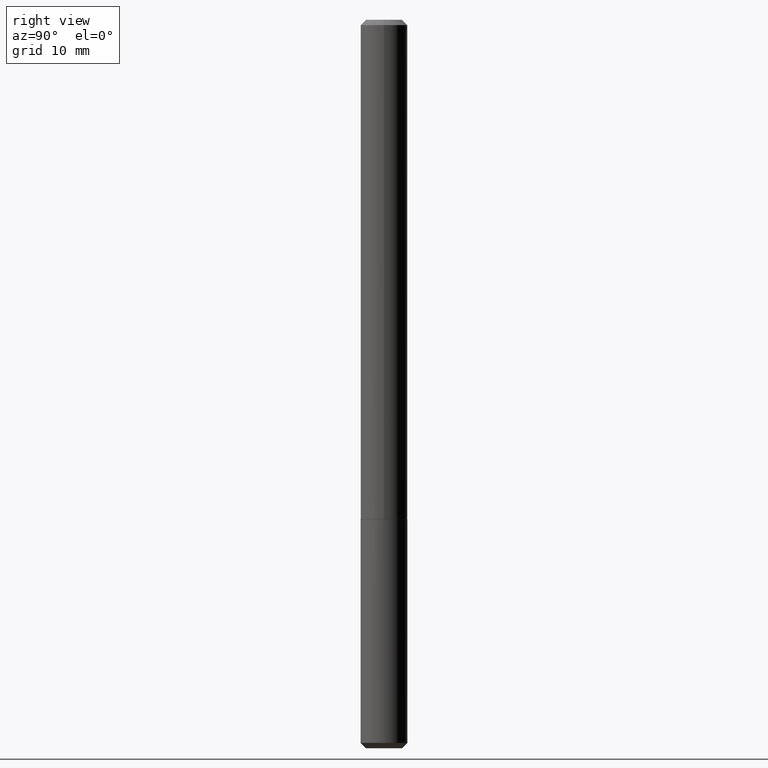
[diagram: clean part render]
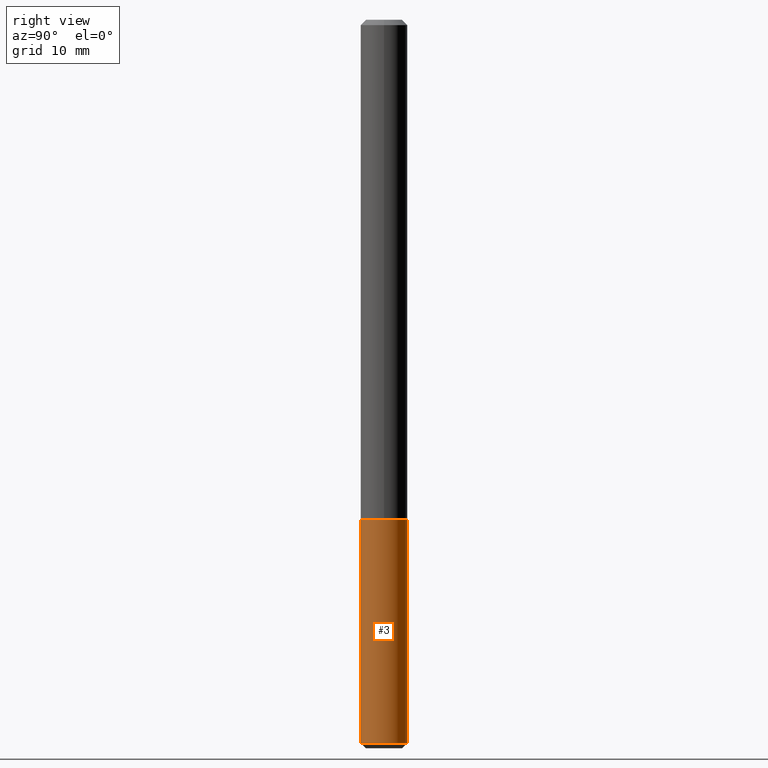
[diagram: same view with one face highlighted and labeled with its STEP entity id]
A machine part, right view. The second image highlights one B-rep face of the part: STEP entity #3.
In plain terms, the highlighted cylindrical surface (edge-blend (fillet) strip) has radius 2.2504 mm, axis along (-0, 0, 1).
Its self-contained STEP definition (entity closure, byte-faithful):
#3 = ADVANCED_FACE ( 'NONE', ( #37 ), #123, .T. ) ;
#15 = ORIENTED_EDGE ( 'NONE', *, *, #295, .T. ) ;
#20 = EDGE_CURVE ( 'NONE', #284, #95, #333, .T. ) ;
#37 = FACE_OUTER_BOUND ( 'NONE', #99, .T. ) ;
#79 = VECTOR ( 'NONE', #107, 39.37007874015748143 ) ;
#80 = CARTESIAN_POINT ( 'NONE',  ( 6.295408638835171856E-16, 0.08859999999999067233, -2.735900000000000887 ) ) ;
#82 = DIRECTION ( 'NONE',  ( -2.444857709437584392E-29, 3.492356464167107304E-15, 1.000000000000000000 ) ) ;
#84 = DIRECTION ( 'NONE',  ( -6.982962677686265133E-15, -1.000000000000000000, 3.083349879982238325E-15 ) ) ;
#91 = ORIENTED_EDGE ( 'NONE', *, *, #159, .T. ) ;
#95 = VERTEX_POINT ( 'NONE', #141 ) ;
#99 = EDGE_LOOP ( 'NONE', ( #91, #15, #287, #206 ) ) ;
#107 = DIRECTION ( 'NONE',  ( -2.444857709437584392E-29, 3.492356464167107304E-15, 1.000000000000000000 ) ) ;
#115 = CARTESIAN_POINT ( 'NONE',  ( 4.621446949928671428E-29, -6.598201434145777579E-15, -1.889800000000000146 ) ) ;
#116 = AXIS2_PLACEMENT_3D ( 'NONE', #167, #241, #370 ) ;
#121 = LINE ( 'NONE', #283, #251 ) ;
#123 = CYLINDRICAL_SURFACE ( 'NONE', #170, 0.08859999999999999820 ) ;
#139 = VERTEX_POINT ( 'NONE', #330 ) ;
#141 = CARTESIAN_POINT ( 'NONE',  ( 6.295408638835158051E-16, 0.08859999999999342013, -1.889800000000000368 ) ) ;
#159 = EDGE_CURVE ( 'NONE', #139, #171, #263, .T. ) ;
#167 = CARTESIAN_POINT ( 'NONE',  ( 6.690041057883811950E-29, -9.553084238477568899E-15, -2.735899999999999999 ) ) ;
#170 = AXIS2_PLACEMENT_3D ( 'NONE', #311, #385, #196 ) ;
#171 = VERTEX_POINT ( 'NONE', #80 ) ;
#196 = DIRECTION ( 'NONE',  ( -6.982962677686265133E-15, -1.000000000000000000, 3.083349879982238325E-15 ) ) ;
#206 = ORIENTED_EDGE ( 'NONE', *, *, #252, .F. ) ;
#236 = CARTESIAN_POINT ( 'NONE',  ( -6.186904932429569031E-16, -0.08860000000000659015, -1.889799999999999924 ) ) ;
#241 = DIRECTION ( 'NONE',  ( -2.444857709437584392E-29, 3.492356464167107304E-15, 1.000000000000000000 ) ) ;
#242 = CARTESIAN_POINT ( 'NONE',  ( 6.295408638834948017E-16, 0.08859999999999340625, -1.889800000000000368 ) ) ;
#251 = VECTOR ( 'NONE', #383, 39.37007874015748143 ) ;
#252 = EDGE_CURVE ( 'NONE', #139, #284, #121, .T. ) ;
#263 = CIRCLE ( 'NONE', #116, 0.08859999999999999820 ) ;
#283 = CARTESIAN_POINT ( 'NONE',  ( -6.186904932429569031E-16, -0.08860000000000659015, -1.889799999999999924 ) ) ;
#284 = VERTEX_POINT ( 'NONE', #236 ) ;
#287 = ORIENTED_EDGE ( 'NONE', *, *, #20, .F. ) ;
#295 = EDGE_CURVE ( 'NONE', #171, #95, #396, .T. ) ;
#311 = CARTESIAN_POINT ( 'NONE',  ( 4.621446949928671428E-29, -6.598201434145777579E-15, -1.889800000000000146 ) ) ;
#315 = AXIS2_PLACEMENT_3D ( 'NONE', #115, #82, #84 ) ;
#330 = CARTESIAN_POINT ( 'NONE',  ( -6.186904932429345192E-16, -0.08860000000000932407, -2.735899999999999554 ) ) ;
#333 = CIRCLE ( 'NONE', #315, 0.08859999999999999820 ) ;
#370 = DIRECTION ( 'NONE',  ( -6.982962677686265133E-15, -1.000000000000000000, 6.166699759964476650E-15 ) ) ;
#383 = DIRECTION ( 'NONE',  ( -2.444857709437584392E-29, 3.492356464167107304E-15, 1.000000000000000000 ) ) ;
#385 = DIRECTION ( 'NONE',  ( -2.444857709437584392E-29, 3.492356464167107304E-15, 1.000000000000000000 ) ) ;
#396 = LINE ( 'NONE', #242, #79 ) ;